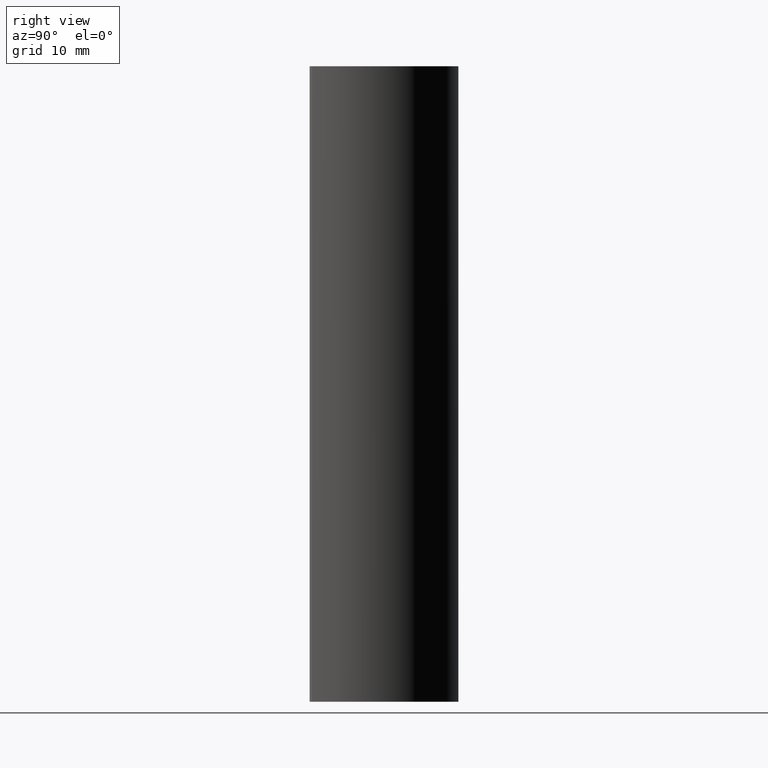
[diagram: clean part render]
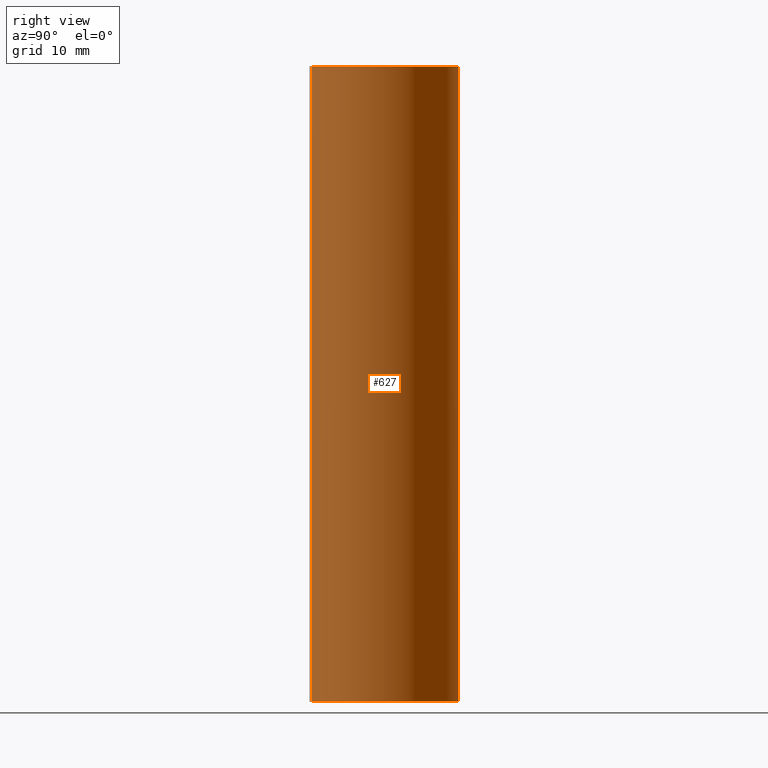
[diagram: same view with one face highlighted and labeled with its STEP entity id]
A machine part, right view. The second image highlights one B-rep face of the part: STEP entity #627.
In plain terms, the highlighted cylindrical surface (partial cylindrical patch) has radius 17 mm, axis along (0, 0, 1).
Its self-contained STEP definition (entity closure, byte-faithful):
#567=CARTESIAN_POINT('',(24.901784698935671,-23.011093360509506,100.0));
#568=VERTEX_POINT('',#567);
#576=CARTESIAN_POINT('',(24.901784698935671,-23.011093360509506,200.0));
#577=VERTEX_POINT('',#576);
#578=CARTESIAN_POINT('',(24.901784698935671,-23.011093360509506,100.0));
#579=DIRECTION('',(0.0,0.0,1.0));
#580=VECTOR('',#579,100.0);
#581=LINE('',#578,#580);
#582=EDGE_CURVE('',#568,#577,#581,.T.);
#595=CARTESIAN_POINT('',(9.000000000008186,-16.999999999983800,100.0));
#596=DIRECTION('',(0.0,0.0,1.0));
#597=DIRECTION('',(0.935399099936910,-0.353593727089747,0.0));
#598=AXIS2_PLACEMENT_3D('',#595,#596,#597);
#599=CYLINDRICAL_SURFACE('',#598,16.999999999999979);
#600=CARTESIAN_POINT('',(9.000000000008186,1.625722E-011,100.0));
#601=VERTEX_POINT('',#600);
#602=CARTESIAN_POINT('',(9.000000000008189,-16.999999999983807,100.000000000000060));
#603=DIRECTION('',(0.0,0.0,1.000000000000000));
#604=DIRECTION('',(0.935399099936910,-0.353593727089747,0.0));
#605=AXIS2_PLACEMENT_3D('',#602,#603,#604);
#606=CIRCLE('',#605,16.999999999999979);
#607=EDGE_CURVE('',#568,#601,#606,.T.);
#608=ORIENTED_EDGE('',*,*,#607,.T.);
#609=CARTESIAN_POINT('',(9.000000000008186,1.625722E-011,200.0));
#610=VERTEX_POINT('',#609);
#611=CARTESIAN_POINT('',(9.000000000008186,1.625722E-011,100.0));
#612=DIRECTION('',(0.0,0.0,1.0));
#613=VECTOR('',#612,100.0);
#614=LINE('',#611,#613);
#615=EDGE_CURVE('',#601,#610,#614,.T.);
#616=ORIENTED_EDGE('',*,*,#615,.T.);
#617=CARTESIAN_POINT('',(9.000000000008189,-16.999999999983807,200.000000000000110));
#618=DIRECTION('',(0.0,0.0,1.000000000000000));
#619=DIRECTION('',(0.935399099936910,-0.353593727089747,0.0));
#620=AXIS2_PLACEMENT_3D('',#617,#618,#619);
#621=CIRCLE('',#620,16.999999999999979);
#622=EDGE_CURVE('',#577,#610,#621,.T.);
#623=ORIENTED_EDGE('',*,*,#622,.F.);
#624=ORIENTED_EDGE('',*,*,#582,.F.);
#625=EDGE_LOOP('',(#608,#616,#623,#624));
#626=FACE_OUTER_BOUND('',#625,.T.);
#627=ADVANCED_FACE('',(#626),#599,.T.);